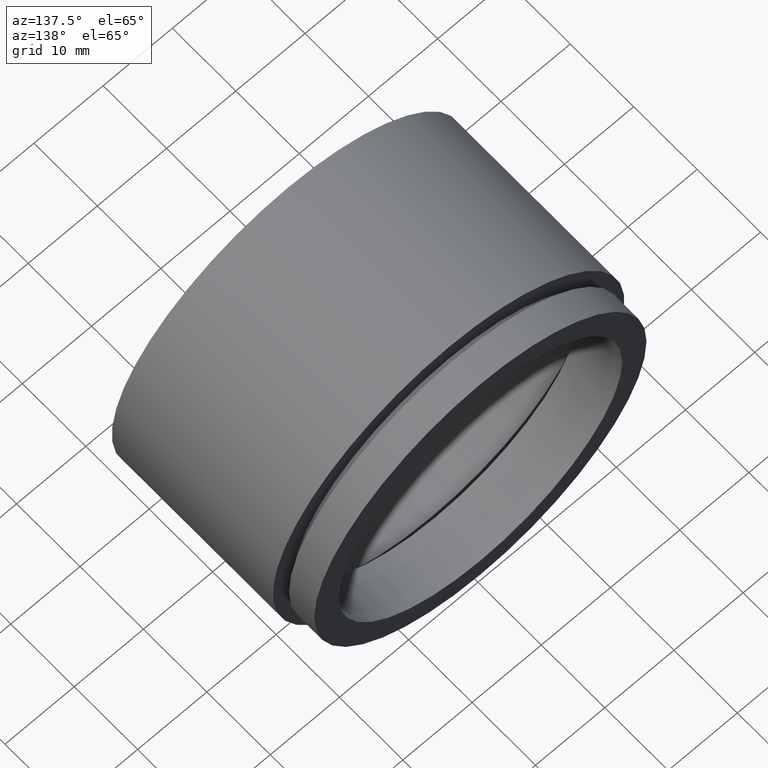
[diagram: clean part render]
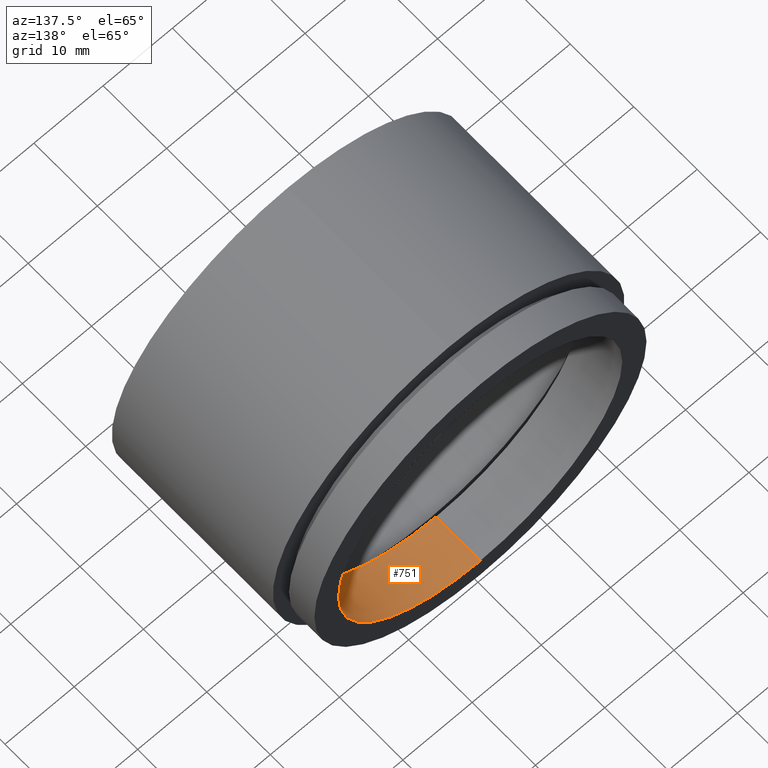
[diagram: same view with one face highlighted and labeled with its STEP entity id]
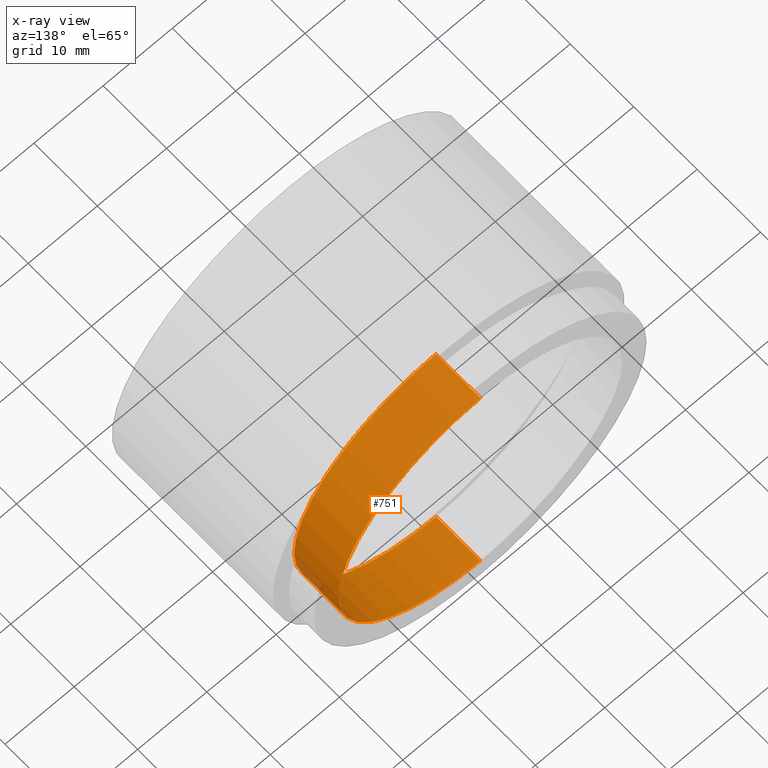
[diagram: x-ray of the same camera — body ghosted, the highlighted face saturated]
A machine part, auxiliary view. The second image highlights one B-rep face of the part: STEP entity #751.
The next image is the same camera in x-ray: the body ghosted, the highlighted face saturated — about 1% of this face is hidden behind the body in this view.
In plain terms, the highlighted cylindrical surface (partial cylindrical patch) has radius 20.5 mm, axis along (-0, 1, -0).
Its self-contained STEP definition (entity closure, byte-faithful):
#8 = VERTEX_POINT ( 'NONE', #685 ) ;
#10 = CARTESIAN_POINT ( 'NONE',  ( 0.0000000000000000000, 23.39999999999997700, 20.50000000000001800 ) ) ;
#26 = AXIS2_PLACEMENT_3D ( 'NONE', #234, #741, #426 ) ;
#108 = VERTEX_POINT ( 'NONE', #10 ) ;
#124 = EDGE_CURVE ( 'NONE', #108, #747, #228, .T. ) ;
#137 = ORIENTED_EDGE ( 'NONE', *, *, #124, .F. ) ;
#139 = CARTESIAN_POINT ( 'NONE',  ( 2.510525938252076100E-015, 23.39999999999997700, -20.50000000000001800 ) ) ;
#146 = LINE ( 'NONE', #344, #251 ) ;
#171 = FACE_OUTER_BOUND ( 'NONE', #241, .T. ) ;
#174 = CARTESIAN_POINT ( 'NONE',  ( 2.510525938252075700E-015, 30.39999999999998400, -20.50000000000001400 ) ) ;
#207 = CARTESIAN_POINT ( 'NONE',  ( 0.0000000000000000000, 161.3761669434274500, 0.0000000000000000000 ) ) ;
#213 = DIRECTION ( 'NONE',  ( -0.0000000000000000000, 1.000000000000000000, -0.0000000000000000000 ) ) ;
#228 = CIRCLE ( 'NONE', #285, 20.50000000000001800 ) ;
#234 = CARTESIAN_POINT ( 'NONE',  ( 0.0000000000000000000, 30.39999999999998400, 0.0000000000000000000 ) ) ;
#241 = EDGE_LOOP ( 'NONE', ( #716, #137, #428, #452 ) ) ;
#250 = EDGE_CURVE ( 'NONE', #747, #421, #654, .T. ) ;
#251 = VECTOR ( 'NONE', #773, 1000.000000000000000 ) ;
#269 = CYLINDRICAL_SURFACE ( 'NONE', #744, 20.50000000000001800 ) ;
#285 = AXIS2_PLACEMENT_3D ( 'NONE', #509, #630, #702 ) ;
#310 = EDGE_CURVE ( 'NONE', #108, #8, #146, .T. ) ;
#342 = CIRCLE ( 'NONE', #26, 20.50000000000001400 ) ;
#344 = CARTESIAN_POINT ( 'NONE',  ( 0.0000000000000000000, 161.3761669434274500, 20.50000000000001800 ) ) ;
#352 = VECTOR ( 'NONE', #519, 1000.000000000000000 ) ;
#421 = VERTEX_POINT ( 'NONE', #174 ) ;
#426 = DIRECTION ( 'NONE',  ( 0.0000000000000000000, 0.0000000000000000000, 1.000000000000000000 ) ) ;
#428 = ORIENTED_EDGE ( 'NONE', *, *, #310, .T. ) ;
#452 = ORIENTED_EDGE ( 'NONE', *, *, #499, .T. ) ;
#499 = EDGE_CURVE ( 'NONE', #8, #421, #342, .T. ) ;
#509 = CARTESIAN_POINT ( 'NONE',  ( 0.0000000000000000000, 23.39999999999997700, 0.0000000000000000000 ) ) ;
#519 = DIRECTION ( 'NONE',  ( -0.0000000000000000000, 1.000000000000000000, -0.0000000000000000000 ) ) ;
#630 = DIRECTION ( 'NONE',  ( -0.0000000000000000000, 1.000000000000000000, -0.0000000000000000000 ) ) ;
#654 = LINE ( 'NONE', #719, #352 ) ;
#685 = CARTESIAN_POINT ( 'NONE',  ( 0.0000000000000000000, 30.39999999999998400, 20.50000000000001400 ) ) ;
#702 = DIRECTION ( 'NONE',  ( 0.0000000000000000000, 0.0000000000000000000, 1.000000000000000000 ) ) ;
#716 = ORIENTED_EDGE ( 'NONE', *, *, #250, .F. ) ;
#719 = CARTESIAN_POINT ( 'NONE',  ( 2.510525938252076100E-015, 161.3761669434274500, -20.50000000000001800 ) ) ;
#741 = DIRECTION ( 'NONE',  ( -0.0000000000000000000, 1.000000000000000000, -0.0000000000000000000 ) ) ;
#744 = AXIS2_PLACEMENT_3D ( 'NONE', #207, #213, #770 ) ;
#747 = VERTEX_POINT ( 'NONE', #139 ) ;
#751 = ADVANCED_FACE ( 'NONE', ( #171 ), #269, .F. ) ;
#770 = DIRECTION ( 'NONE',  ( 0.0000000000000000000, 0.0000000000000000000, 1.000000000000000000 ) ) ;
#773 = DIRECTION ( 'NONE',  ( -0.0000000000000000000, 1.000000000000000000, -0.0000000000000000000 ) ) ;